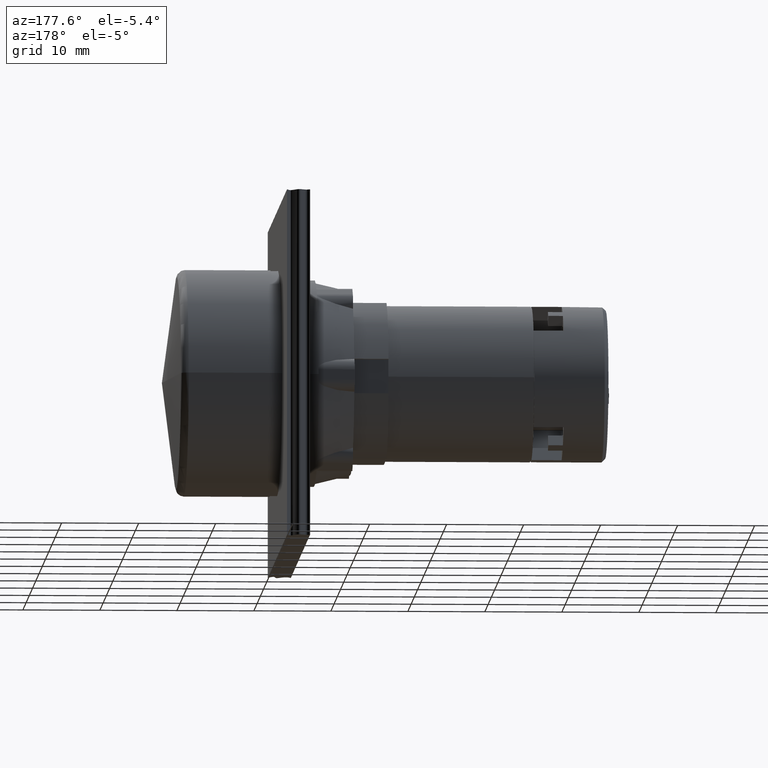
[diagram: clean part render]
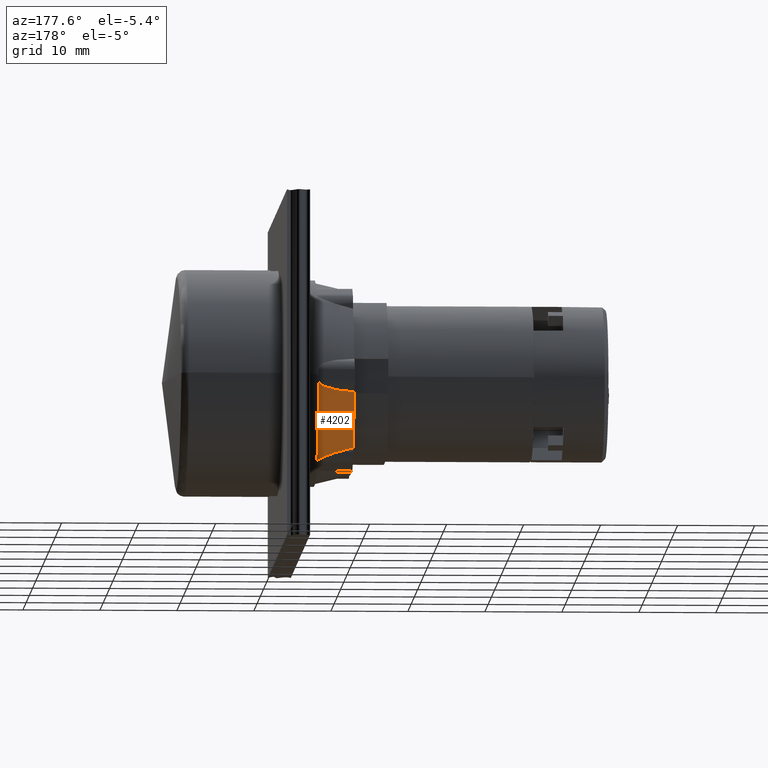
[diagram: same view with one face highlighted and labeled with its STEP entity id]
A machine part, auxiliary view. The second image highlights one B-rep face of the part: STEP entity #4202.
In plain terms, the highlighted conical surface has half-angle 14.357 deg.
Its self-contained STEP definition (entity closure, byte-faithful):
#4014=CARTESIAN_POINT('',(-5.624441413677321,18.914931874336858,10.825933760222373));
#4015=VERTEX_POINT('',#4014);
#4024=CARTESIAN_POINT('',(-0.924441413677319,19.244718249735943,9.063384223984858));
#4025=VERTEX_POINT('',#4024);
#4033=CARTESIAN_POINT('',(-5.624441413677302,18.914931874336848,10.825933760222375));
#4034=CARTESIAN_POINT('',(-5.573448501603622,18.980535711093754,10.765405103552277));
#4035=CARTESIAN_POINT('',(-5.499858718230356,19.033913658476550,10.705118900652845));
#4036=CARTESIAN_POINT('',(-5.426497655230042,19.075091716882351,10.652960588486010));
#4037=CARTESIAN_POINT('',(-5.353885066417494,19.115849651689086,10.601334427146025));
#4038=CARTESIAN_POINT('',(-5.274396952156988,19.149361881407497,10.552142641988405));
#4039=CARTESIAN_POINT('',(-5.190253476798521,19.178551005237466,10.504260849394472));
#4040=CARTESIAN_POINT('',(-4.885104151434943,19.284406407652490,10.330615814589436));
#4041=CARTESIAN_POINT('',(-4.520065672203624,19.335335860878455,10.173548079574481));
#4042=CARTESIAN_POINT('',(-4.173129532816279,19.364370915310680,10.038271890884836));
#4043=CARTESIAN_POINT('',(-3.959007105867212,19.382290802044317,9.954781984408685));
#4044=CARTESIAN_POINT('',(-3.757275896402450,19.391193438870960,9.881777173969748));
#4045=CARTESIAN_POINT('',(-3.544573123046173,19.395351749430535,9.808671349461440));
#4046=CARTESIAN_POINT('',(-2.723368144514867,19.411406196111781,9.526423656596144));
#4047=CARTESIAN_POINT('',(-1.810992263511507,19.347763520855192,9.273648736820219));
#4048=CARTESIAN_POINT('',(-0.924441413677319,19.244718249735939,9.063384223984860));
#4049=B_SPLINE_CURVE_WITH_KNOTS('',3,(#4033,#4034,#4035,#4036,#4037,#4038,#4039,#4040,#4041,#4042,#4043,#4044,#4045,#4046,#4047,#4048),.UNSPECIFIED.,.F.,.U.,(4,3,3,3,3,4),(0.680390622135763,0.710017202496712,0.739341514463979,0.845687181498069,0.911321716894318,1.164724182600337),.UNSPECIFIED.);
#4050=EDGE_CURVE('',#4015,#4025,#4049,.T.);
#4112=CARTESIAN_POINT('',(-5.624441413677320,24.599678933381583,0.979663025779157));
#4113=VERTEX_POINT('',#4112);
#4114=CARTESIAN_POINT('',(-5.624441413677320,11.533358680345970,0.0));
#4115=DIRECTION('',(1.0,0.0,0.0));
#4116=DIRECTION('',(0.0,1.0,0.0));
#4117=AXIS2_PLACEMENT_3D('',#4114,#4115,#4116);
#4118=CIRCLE('',#4117,13.102994489770934);
#4119=EDGE_CURVE('',#4113,#4015,#4118,.T.);
#4159=CARTESIAN_POINT('',(-3.274441413677319,11.533358680345970,0.0));
#4160=DIRECTION('',(-1.0,0.0,0.0));
#4161=DIRECTION('',(0.0,1.0,0.0));
#4162=AXIS2_PLACEMENT_3D('',#4159,#4160,#4161);
#4163=CONICAL_SURFACE('',#4162,12.501497244885464,14.356985316744316);
#4164=ORIENTED_EDGE('',*,*,#4050,.T.);
#4165=CARTESIAN_POINT('',(-0.924441413677318,23.238159447270959,2.146541172815513));
#4166=VERTEX_POINT('',#4165);
#4167=CARTESIAN_POINT('',(-0.924441413677319,11.533358680345970,0.0));
#4168=DIRECTION('',(1.0,0.0,0.0));
#4169=DIRECTION('',(0.0,1.0,0.0));
#4170=AXIS2_PLACEMENT_3D('',#4167,#4168,#4169);
#4171=CIRCLE('',#4170,11.899999999999999);
#4172=EDGE_CURVE('',#4166,#4025,#4171,.T.);
#4173=ORIENTED_EDGE('',*,*,#4172,.F.);
#4174=CARTESIAN_POINT('',(-0.924441413677319,23.238159447270956,2.146541172815514));
#4175=CARTESIAN_POINT('',(-1.771683228070776,23.461418078489380,2.131353398165722));
#4176=CARTESIAN_POINT('',(-2.642508015099923,23.700270514192951,2.065432100229143));
#4177=CARTESIAN_POINT('',(-3.434810393553470,23.927383299124816,1.924469040424965));
#4178=CARTESIAN_POINT('',(-3.583648307694659,23.970047557245604,1.897988433572358));
#4179=CARTESIAN_POINT('',(-3.729719096947518,24.012285189673179,1.868814795358323));
#4180=CARTESIAN_POINT('',(-3.872317070512918,24.053894114882205,1.836641738132956));
#4181=CARTESIAN_POINT('',(-4.018377826273101,24.096513451682334,1.803687405501452));
#4182=CARTESIAN_POINT('',(-4.169407172229945,24.140983373845852,1.765718001898749));
#4183=CARTESIAN_POINT('',(-4.322920163511296,24.186741946618689,1.720833048705112));
#4184=CARTESIAN_POINT('',(-4.570134522573487,24.260430669281288,1.648551186156001));
#4185=CARTESIAN_POINT('',(-4.820924727797380,24.336614314251964,1.559616903047113));
#4186=CARTESIAN_POINT('',(-5.047877207843887,24.407851289218559,1.445796791348744));
#4187=CARTESIAN_POINT('',(-5.181444270855185,24.449775984300754,1.378810882985663));
#4188=CARTESIAN_POINT('',(-5.307176962551952,24.490085792282414,1.303462773989912));
#4189=CARTESIAN_POINT('',(-5.417192105387840,24.526846034223357,1.212609629200423));
#4190=CARTESIAN_POINT('',(-5.488457681084301,24.550658572544290,1.153756806758375));
#4191=CARTESIAN_POINT('',(-5.559948776567048,24.575310524817830,1.081967385657016));
#4192=CARTESIAN_POINT('',(-5.612343651441606,24.595072190991949,0.999483645021265));
#4193=CARTESIAN_POINT('',(-5.616499890349417,24.596639790991620,0.992940597959642));
#4194=CARTESIAN_POINT('',(-5.620535544533193,24.598176310082248,0.986332949957613));
#4195=CARTESIAN_POINT('',(-5.624441413677310,24.599678933381576,0.979663025779150));
#4196=B_SPLINE_CURVE_WITH_KNOTS('',3,(#4174,#4175,#4176,#4177,#4178,#4179,#4180,#4181,#4182,#4183,#4184,#4185,#4186,#4187,#4188,#4189,#4190,#4191,#4192,#4193,#4194,#4195),.UNSPECIFIED.,.F.,.U.,(4,3,3,3,3,3,3,4),(0.144484446797570,0.386651227029857,0.432143452503688,0.478740389807801,0.553779198534973,0.597941365396957,0.626548720387327,0.628818007262144),.UNSPECIFIED.);
#4197=EDGE_CURVE('',#4166,#4113,#4196,.T.);
#4198=ORIENTED_EDGE('',*,*,#4197,.T.);
#4199=ORIENTED_EDGE('',*,*,#4119,.T.);
#4200=EDGE_LOOP('',(#4164,#4173,#4198,#4199));
#4201=FACE_OUTER_BOUND('',#4200,.T.);
#4202=ADVANCED_FACE('',(#4201),#4163,.T.);